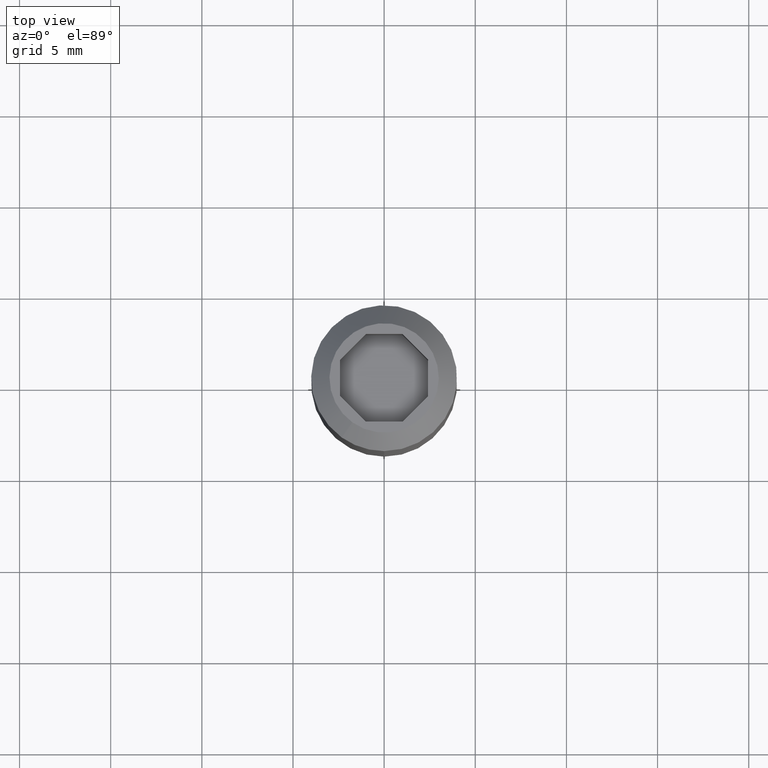
[diagram: clean part render]
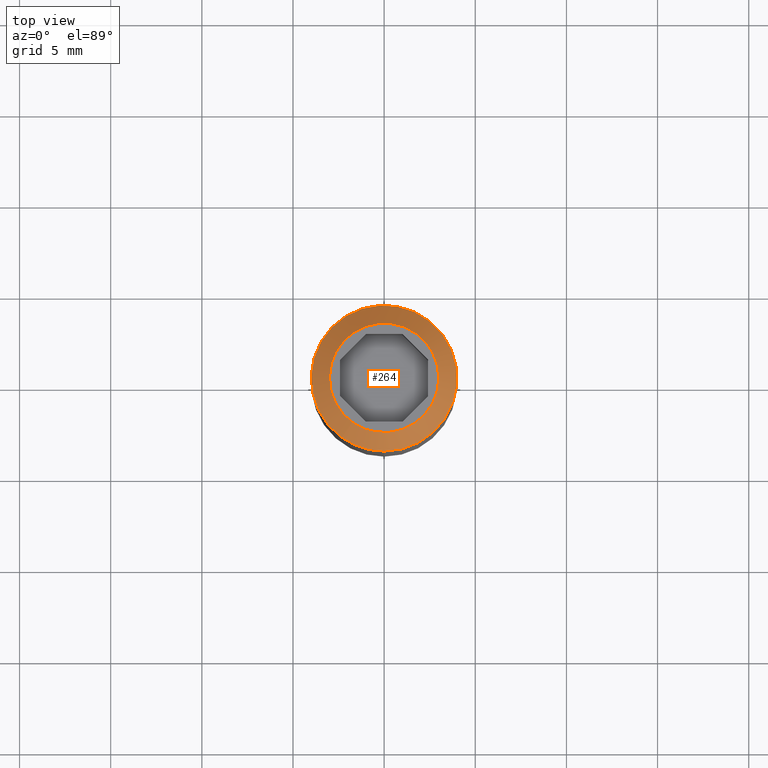
[diagram: same view with one face highlighted and labeled with its STEP entity id]
A machine part, top view. The second image highlights one B-rep face of the part: STEP entity #264.
In plain terms, the highlighted conical surface has half-angle 45 deg.
Its self-contained STEP definition (entity closure, byte-faithful):
#32=FACE_OUTER_BOUND('',#48,.T.);
#48=EDGE_LOOP('',(#194,#195,#196,#197,#198));
#66=LINE('',#417,#94);
#94=VECTOR('',#341,0.420000000000002);
#124=CIRCLE('',#307,3.);
#125=CIRCLE('',#308,4.);
#126=CIRCLE('',#309,4.);
#132=VERTEX_POINT('',#414);
#133=VERTEX_POINT('',#416);
#134=VERTEX_POINT('',#418);
#157=EDGE_CURVE('',#132,#132,#124,.T.);
#158=EDGE_CURVE('',#132,#133,#66,.T.);
#159=EDGE_CURVE('',#134,#133,#125,.T.);
#160=EDGE_CURVE('',#133,#134,#126,.T.);
#194=ORIENTED_EDGE('',*,*,#157,.F.);
#195=ORIENTED_EDGE('',*,*,#158,.T.);
#196=ORIENTED_EDGE('',*,*,#159,.F.);
#197=ORIENTED_EDGE('',*,*,#160,.F.);
#198=ORIENTED_EDGE('',*,*,#158,.F.);
#262=CONICAL_SURFACE('',#306,0.420000000000002,0.785398163397447);
#264=ADVANCED_FACE('',(#32),#262,.T.);
#306=AXIS2_PLACEMENT_3D('',#413,#337,#338);
#307=AXIS2_PLACEMENT_3D('',#415,#339,#340);
#308=AXIS2_PLACEMENT_3D('',#419,#342,#343);
#309=AXIS2_PLACEMENT_3D('',#420,#344,#345);
#337=DIRECTION('center_axis',(-2.72717667159305E-16,-1.96537398351416E-16,
-1.));
#338=DIRECTION('ref_axis',(0.581108581114918,0.813826036051076,-3.18425828444038E-16));
#339=DIRECTION('center_axis',(0.,0.,1.));
#340=DIRECTION('ref_axis',(-1.,0.,0.));
#341=DIRECTION('',(-0.410905818312051,-0.575461908797883,-0.707106781186548));
#342=DIRECTION('center_axis',(0.,0.,-1.));
#343=DIRECTION('ref_axis',(-1.,0.,0.));
#344=DIRECTION('center_axis',(0.,0.,-1.));
#345=DIRECTION('ref_axis',(-1.,0.,0.));
#413=CARTESIAN_POINT('Origin',(2.42861286636753E-16,2.15105711021124E-15,
21.08));
#414=CARTESIAN_POINT('',(-1.74332574334476,-2.44147810815323,18.5));
#415=CARTESIAN_POINT('Origin',(0.,2.265597E-15,18.5));
#416=CARTESIAN_POINT('',(-2.32443432445968,-3.25530414420431,17.5));
#417=CARTESIAN_POINT('',(-0.244065604068266,-0.341806935141451,21.08));
#418=CARTESIAN_POINT('',(4.89858719658942E-16,-4.,17.5));
#419=CARTESIAN_POINT('Origin',(0.,2.143132E-15,17.5));
#420=CARTESIAN_POINT('Origin',(0.,2.143132E-15,17.5));